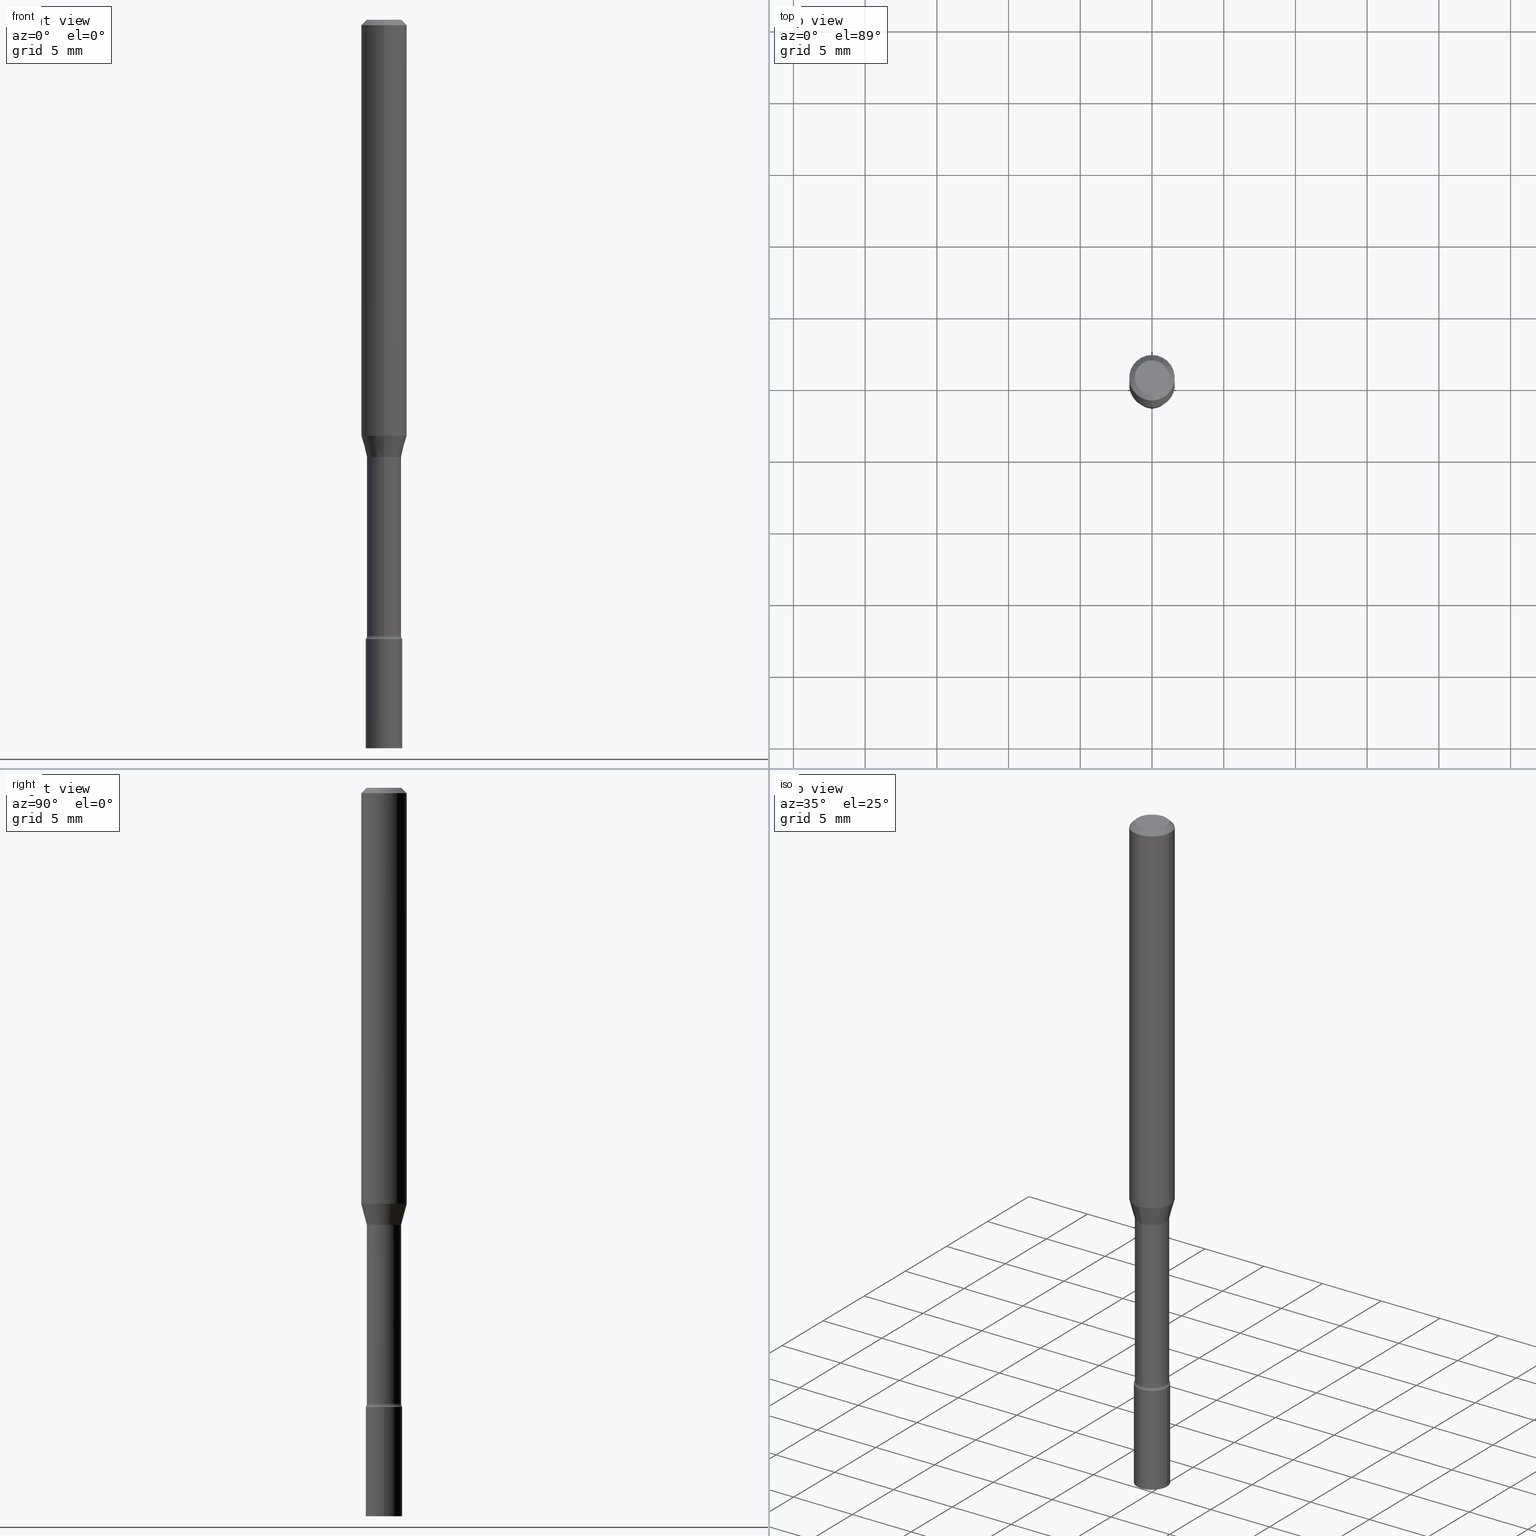
[diagram: canonical four-view strip — front | top / right | iso, engineering-drawing reading convention]
A machine part, canonical four-view strip (front | top / right | iso — engineering-drawing reading convention). The complete STEP part file that produces these views, byte-faithful:
ISO-10303-21;
HEADER;
FILE_DESCRIPTION (( 'STEP AP203' ),
    '1' );
FILE_NAME ('01334.STEP',
    '2024-03-08T21:14:41',
    ( '' ),
    ( '' ),
    'SwSTEP 2.0',
    'SolidWorks 2023',
    '' );
FILE_SCHEMA (( 'CONFIG_CONTROL_DESIGN' ));
ENDSEC;

DATA;
#1 = ORIENTED_EDGE ( 'NONE', *, *, #10, .T. ) ;
#2 = PERSON_AND_ORGANIZATION_ROLE ( 'design_supplier' ) ;
#3 = FACE_OUTER_BOUND ( 'NONE', #501, .T. ) ;
#4 =( NAMED_UNIT ( * ) SI_UNIT ( $, .STERADIAN. ) SOLID_ANGLE_UNIT ( ) );
#5 = LOCAL_TIME ( 16, 14, 41.00000000000000000, #60 ) ;
#6 = DIRECTION ( 'NONE',  ( -6.982962677686266711E-15, -1.000000000000000000, 3.491578024040388367E-15 ) ) ;
#7 = DIRECTION ( 'NONE',  ( -2.445401291272753794E-29, 3.491578024040387972E-15, 1.000000000000000000 ) ) ;
#8 = DIRECTION ( 'NONE',  ( 1.000000000000000000, -6.982962677686274599E-15, 0.000000000000000000 ) ) ;
#9 = AXIS2_PLACEMENT_3D ( 'NONE', #447, #80, #30 ) ;
#10 = EDGE_CURVE ( 'NONE', #214, #58, #506, .T. ) ;
#11 = ORGANIZATION ( 'UNSPECIFIED', 'UNSPECIFIED', '' ) ;
#12 = CARTESIAN_POINT ( 'NONE',  ( 3.668101936909137820E-31, -5.237367036060592707E-17, -0.01500000000000003067 ) ) ;
#13 = DIRECTION ( 'NONE',  ( -2.445401291272753794E-29, 3.491578024040387972E-15, 1.000000000000000000 ) ) ;
#14 = CARTESIAN_POINT ( 'NONE',  ( 3.668101936909137820E-31, -5.237367036060592707E-17, -0.01500000000000003067 ) ) ;
#15 = CARTESIAN_POINT ( 'NONE',  ( 4.890937612370273194E-29, -6.982962677686291165E-15, -2.000000000000000000 ) ) ;
#16 = CONICAL_SURFACE ( 'NONE', #414, 0.06250000000000000000, 0.7853981633974483900 ) ;
#17 = DIRECTION ( 'NONE',  ( -2.445401291272753794E-29, 3.491578024040387972E-15, 1.000000000000000000 ) ) ;
#18 = DIRECTION ( 'NONE',  ( -2.445468806185136597E-29, 3.491481338843145583E-15, 1.000000000000000000 ) ) ;
#19 = VERTEX_POINT ( 'NONE', #382 ) ;
#20 = PERSON_AND_ORGANIZATION_ROLE ( 'creator' ) ;
#21 = CALENDAR_DATE ( 2024, 8, 3 ) ;
#22 = TOROIDAL_SURFACE ( 'NONE', #281, 0.06199999999999999956, 0.01499999999999998557 ) ;
#23 = EDGE_CURVE ( 'NONE', #275, #148, #94, .T. ) ;
#24 = FACE_OUTER_BOUND ( 'NONE', #321, .T. ) ;
#25 = ORIENTED_EDGE ( 'NONE', *, *, #50, .F. ) ;
#26 = EDGE_LOOP ( 'NONE', ( #235, #28, #368, #508 ) ) ;
#27 = ORIENTED_EDGE ( 'NONE', *, *, #88, .F. ) ;
#28 = ORIENTED_EDGE ( 'NONE', *, *, #513, .F. ) ;
#29 = VECTOR ( 'NONE', #362, 39.37007874015748143 ) ;
#30 = DIRECTION ( 'NONE',  ( 1.000000000000000000, -6.982962677686274599E-15, 0.000000000000000000 ) ) ;
#31 = DIRECTION ( 'NONE',  ( -2.445401291272753794E-29, 3.491578024040387972E-15, 1.000000000000000000 ) ) ;
#32 = DIRECTION ( 'NONE',  ( -2.445401291272753794E-29, 3.491578024040387972E-15, 1.000000000000000000 ) ) ;
#33 = ORIENTED_EDGE ( 'NONE', *, *, #119, .F. ) ;
#34 = AXIS2_PLACEMENT_3D ( 'NONE', #409, #520, #291 ) ;
#35 = DIRECTION ( 'NONE',  ( -2.445401291272753794E-29, 3.491578024040387972E-15, 1.000000000000000000 ) ) ;
#36 = ADVANCED_FACE ( 'NONE', ( #24 ), #470, .T. ) ;
#37 = DIRECTION ( 'NONE',  ( -6.982962677686265922E-15, -1.000000000000000000, 3.491578024040387972E-15 ) ) ;
#38 = DIRECTION ( 'NONE',  ( -6.982962677686266711E-15, -1.000000000000000000, 0.000000000000000000 ) ) ;
#39 = ORIENTED_EDGE ( 'NONE', *, *, #372, .F. ) ;
#40 = DIRECTION ( 'NONE',  ( -2.445401291272753794E-29, 3.491578024040387972E-15, 1.000000000000000000 ) ) ;
#41 = DIRECTION ( 'NONE',  ( -6.982962677686265922E-15, -1.000000000000000000, 3.491578024040387972E-15 ) ) ;
#42 = EDGE_CURVE ( 'NONE', #267, #257, #469, .T. ) ;
#43 = DIRECTION ( 'NONE',  ( 1.839019923739597160E-15, 0.2588190451025245142, 0.9659258262890670910 ) ) ;
#44 = ORIENTED_EDGE ( 'NONE', *, *, #23, .F. ) ;
#45 = ADVANCED_FACE ( 'NONE', ( #433 ), #389, .T. ) ;
#46 = CARTESIAN_POINT ( 'NONE',  ( 4.157182195163681338E-29, -5.935682640868658685E-15, -1.699999999999999956 ) ) ;
#47 = AXIS2_PLACEMENT_3D ( 'NONE', #272, #192, #62 ) ;
#48 = DIRECTION ( 'NONE',  ( -2.445468806185136597E-29, 3.491481338843145583E-15, 1.000000000000000000 ) ) ;
#49 = DIRECTION ( 'NONE',  ( -6.982962677686265922E-15, -1.000000000000000000, 3.491578024040387972E-15 ) ) ;
#50 = EDGE_CURVE ( 'NONE', #193, #503, #166, .T. ) ;
#51 = CARTESIAN_POINT ( 'NONE',  ( 4.364351673553919652E-16, 0.06249999999999995143, -0.01500000000000024751 ) ) ;
#52 = ADVANCED_FACE ( 'NONE', ( #453 ), #326, .F. ) ;
#53 = FACE_OUTER_BOUND ( 'NONE', #157, .T. ) ;
#54 = CIRCLE ( 'NONE', #91, 0.05000000000000000278 ) ;
#55 = DIMENSIONAL_EXPONENTS ( 1.000000000000000000, 0.000000000000000000, 0.000000000000000000, 0.000000000000000000, 0.000000000000000000, 0.000000000000000000, 0.000000000000000000 ) ;
#56 = ORIENTED_EDGE ( 'NONE', *, *, #178, .T. ) ;
#57 = PERSON_AND_ORGANIZATION ( #286, #11 ) ;
#58 = VERTEX_POINT ( 'NONE', #328 ) ;
#59 = ORIENTED_EDGE ( 'NONE', *, *, #126, .T. ) ;
#60 = COORDINATED_UNIVERSAL_TIME_OFFSET ( 5, 0, .BEHIND. ) ;
#61 = APPROVAL ( #422, 'UNSPECIFIED' ) ;
#62 = DIRECTION ( 'NONE',  ( -6.982962677686265133E-15, -1.000000000000000000, 2.874956872025123732E-15 ) ) ;
#63 = LOCAL_TIME ( 16, 14, 41.00000000000000000, #194 ) ;
#64 = ORIENTED_EDGE ( 'NONE', *, *, #338, .T. ) ;
#65 = AXIS2_PLACEMENT_3D ( 'NONE', #489, #89, #249 ) ;
#66 = ADVANCED_BREP_SHAPE_REPRESENTATION ( '01334', ( #340, #505, #95 ), #320 ) ;
#67 = EDGE_LOOP ( 'NONE', ( #152, #265 ) ) ;
#68 = EDGE_CURVE ( 'NONE', #214, #227, #209, .T. ) ;
#69 = CARTESIAN_POINT ( 'NONE',  ( 7.069488449871256355E-46, -1.009391407490864574E-31, -2.890931838099999825E-17 ) ) ;
#70 = EDGE_LOOP ( 'NONE', ( #412, #199, #104, #387 ) ) ;
#71 = CIRCLE ( 'NONE', #313, 0.06250000000000000000 ) ;
#72 = DIRECTION ( 'NONE',  ( -2.445401291272753794E-29, 3.491578024040387972E-15, 1.000000000000000000 ) ) ;
#73 = DIRECTION ( 'NONE',  ( 2.438088387897960049E-29, -3.491481338843145188E-15, -1.000000000000000000 ) ) ;
#74 = DIRECTION ( 'NONE',  ( 0.000000000000000000, 0.000000000000000000, 1.000000000000000000 ) ) ;
#75 = CARTESIAN_POINT ( 'NONE',  ( 0.000000000000000000, 0.000000000000000000, 0.000000000000000000 ) ) ;
#76 = ADVANCED_FACE ( 'NONE', ( #411 ), #124, .T. ) ;
#77 = CLOSED_SHELL ( 'NONE', ( #164, #360, #36, #318 ) ) ;
#78 = FACE_OUTER_BOUND ( 'NONE', #504, .T. ) ;
#79 = CARTESIAN_POINT ( 'NONE',  ( 3.316907271900976096E-16, 0.04749999999999999362, -1.803046153324184159E-16 ) ) ;
#80 = DIRECTION ( 'NONE',  ( -2.445468806185136597E-29, 3.491481338843145583E-15, 1.000000000000000000 ) ) ;
#81 = CIRCLE ( 'NONE', #509, 0.04700000000000009032 ) ;
#82 =( LENGTH_UNIT ( ) NAMED_UNIT ( * ) SI_UNIT ( $, .METRE. ) );
#83 = CARTESIAN_POINT ( 'NONE',  ( 0.000000000000000000, 0.000000000000000000, 0.000000000000000000 ) ) ;
#84 = DIRECTION ( 'NONE',  ( -2.445401291272753794E-29, 3.491578024040387972E-15, 1.000000000000000000 ) ) ;
#85 = CARTESIAN_POINT ( 'NONE',  ( 7.069488449871256355E-46, -1.009391407490864574E-31, -2.890931838099999825E-17 ) ) ;
#86 = DIRECTION ( 'NONE',  ( 6.982962677686265922E-15, 1.000000000000000000, -3.483106191921935554E-15 ) ) ;
#87 = DIRECTION ( 'NONE',  ( -6.982962677686265922E-15, -1.000000000000000000, 2.906221269855598900E-15 ) ) ;
#88 = EDGE_CURVE ( 'NONE', #468, #148, #217, .T. ) ;
#89 = DIRECTION ( 'NONE',  ( -2.445401291272753794E-29, 3.491578024040387972E-15, 1.000000000000000000 ) ) ;
#90 = CARTESIAN_POINT ( 'NONE',  ( -4.364351673553912750E-16, -0.06250000000000005551, -0.01499999999999981209 ) ) ;
#91 = AXIS2_PLACEMENT_3D ( 'NONE', #46, #379, #123 ) ;
#92 = DIRECTION ( 'NONE',  ( -6.982962677686265922E-15, -1.000000000000000000, 2.906221269855598900E-15 ) ) ;
#93 = CARTESIAN_POINT ( 'NONE',  ( -3.281992458512548490E-16, -0.04700000000000004868, 1.641041671298983710E-16 ) ) ;
#94 = CIRCLE ( 'NONE', #516, 0.05000000000000000278 ) ;
#95 = AXIS2_PLACEMENT_3D ( 'NONE', #442, #74, #391 ) ;
#96 = AXIS2_PLACEMENT_3D ( 'NONE', #335, #491, #420 ) ;
#97 = AXIS2_PLACEMENT_3D ( 'NONE', #435, #101, #428 ) ;
#98 = ORIENTED_EDGE ( 'NONE', *, *, #305, .T. ) ;
#99 = DIRECTION ( 'NONE',  ( -2.445401291272753794E-29, 3.491578024040387972E-15, 1.000000000000000000 ) ) ;
#100 = ORIENTED_EDGE ( 'NONE', *, *, #173, .T. ) ;
#101 = DIRECTION ( 'NONE',  ( -2.445468806185136597E-29, 3.491481338843145583E-15, 1.000000000000000000 ) ) ;
#102 = ORIENTED_EDGE ( 'NONE', *, *, #133, .F. ) ;
#103 = PERSON_AND_ORGANIZATION ( #286, #11 ) ;
#104 = ORIENTED_EDGE ( 'NONE', *, *, #116, .T. ) ;
#105 = ORIENTED_EDGE ( 'NONE', *, *, #126, .F. ) ;
#106 = CONICAL_SURFACE ( 'NONE', #292, 0.04751111260566398542, 0.2617993877991498519 ) ;
#107 = VERTEX_POINT ( 'NONE', #371 ) ;
#108 = EDGE_LOOP ( 'NONE', ( #466, #1 ) ) ;
#109 = APPLICATION_PROTOCOL_DEFINITION ( 'international standard', 'config_control_design', 1994, #478 ) ;
#110 = ORIENTED_EDGE ( 'NONE', *, *, #42, .T. ) ;
#111 =( CONVERSION_BASED_UNIT ( 'INCH', #323 ) LENGTH_UNIT ( ) NAMED_UNIT ( #55 ) );
#112 = CIRCLE ( 'NONE', #380, 0.05000000000000000278 ) ;
#113 = AXIS2_PLACEMENT_3D ( 'NONE', #471, #319, #472 ) ;
#114 = DIRECTION ( 'NONE',  ( -2.445401291272753514E-29, 3.491578024040387972E-15, 1.000000000000000000 ) ) ;
#115 = DIRECTION ( 'NONE',  ( 1.000000000000000000, -7.105427357601001070E-15, 4.926316692594255359E-29 ) ) ;
#116 = EDGE_CURVE ( 'NONE', #19, #227, #289, .T. ) ;
#117 = DIRECTION ( 'NONE',  ( -2.445401291272753794E-29, 3.491578024040387972E-15, 1.000000000000000000 ) ) ;
#118 = LINE ( 'NONE', #210, #460 ) ;
#119 = EDGE_CURVE ( 'NONE', #139, #275, #421, .T. ) ;
#120 = CARTESIAN_POINT ( 'NONE',  ( 2.793022940636475492E-29, -3.987917056791665682E-15, -1.142153212482682312 ) ) ;
#121 = EDGE_CURVE ( 'NONE', #267, #245, #515, .T. ) ;
#122 = AXIS2_PLACEMENT_3D ( 'NONE', #254, #13, #253 ) ;
#123 = DIRECTION ( 'NONE',  ( -6.982962677686265133E-15, -1.000000000000000000, 5.463695987328526437E-15 ) ) ;
#124 = CYLINDRICAL_SURFACE ( 'NONE', #197, 0.04700000000000004868 ) ;
#125 = FACE_OUTER_BOUND ( 'NONE', #67, .T. ) ;
#126 = EDGE_CURVE ( 'NONE', #136, #107, #246, .T. ) ;
#127 = FACE_OUTER_BOUND ( 'NONE', #241, .T. ) ;
#128 = ORIENTED_EDGE ( 'NONE', *, *, #119, .T. ) ;
#129 = CIRCLE ( 'NONE', #96, 0.06250000000000000000 ) ;
#130 = CARTESIAN_POINT ( 'NONE',  ( 3.908379845742332554E-16, 0.04751111260565980127, -1.198092501787273223 ) ) ;
#131 = LINE ( 'NONE', #93, #147 ) ;
#132 = ADVANCED_FACE ( 'NONE', ( #479 ), #22, .F. ) ;
#133 = EDGE_CURVE ( 'NONE', #468, #193, #151, .T. ) ;
#134 = CARTESIAN_POINT ( 'NONE',  ( 2.939310697341296923E-29, -4.196788753359257996E-15, -1.201974787463810701 ) ) ;
#135 = AXIS2_PLACEMENT_3D ( 'NONE', #361, #285, #87 ) ;
#136 = VERTEX_POINT ( 'NONE', #396 ) ;
#137 = PERSON_AND_ORGANIZATION ( #286, #11 ) ;
#138 = DIRECTION ( 'NONE',  ( -6.982962677686265133E-15, -1.000000000000000000, 5.463695987328526437E-15 ) ) ;
#139 = VERTEX_POINT ( 'NONE', #287 ) ;
#140 = APPROVAL_STATUS ( 'not_yet_approved' ) ;
#141 = EDGE_CURVE ( 'NONE', #304, #519, #262, .T. ) ;
#142 = ORIENTED_EDGE ( 'NONE', *, *, #269, .F. ) ;
#143 = ORIENTED_EDGE ( 'NONE', *, *, #220, .T. ) ;
#144 = SHAPE_DEFINITION_REPRESENTATION ( #258, #66 ) ;
#145 = DIRECTION ( 'NONE',  ( -2.445401291272753794E-29, 3.491578024040387972E-15, 1.000000000000000000 ) ) ;
#146 = ORIENTED_EDGE ( 'NONE', *, *, #316, .F. ) ;
#147 = VECTOR ( 'NONE', #343, 39.37007874015748143 ) ;
#148 = VERTEX_POINT ( 'NONE', #355 ) ;
#149 = ORIENTED_EDGE ( 'NONE', *, *, #10, .F. ) ;
#150 = PERSON_AND_ORGANIZATION ( #286, #11 ) ;
#151 = LINE ( 'NONE', #236, #205 ) ;
#152 = ORIENTED_EDGE ( 'NONE', *, *, #141, .T. ) ;
#153 = PRODUCT_DEFINITION ( 'UNKNOWN', '', #175, #418 ) ;
#154 = FACE_OUTER_BOUND ( 'NONE', #70, .T. ) ;
#155 = DIRECTION ( 'NONE',  ( -2.445401291272753794E-29, 3.491578024040387972E-15, 1.000000000000000000 ) ) ;
#157 = EDGE_LOOP ( 'NONE', ( #182, #278, #39, #393 ) ) ;
#156 = AXIS2_PLACEMENT_3D ( 'NONE', #208, #114, #37 ) ;
#158 = AXIS2_PLACEMENT_3D ( 'NONE', #485, #7, #458 ) ;
#159 = DIRECTION ( 'NONE',  ( -2.445401291272753794E-29, 3.491578024040387972E-15, 1.000000000000000000 ) ) ;
#160 = DIRECTION ( 'NONE',  ( -6.982962677686265922E-15, -1.000000000000000000, 3.491578024040387183E-15 ) ) ;
#161 = DIRECTION ( 'NONE',  ( -6.982962677686265922E-15, -1.000000000000000000, 3.491578024040387972E-15 ) ) ;
#162 = CARTESIAN_POINT ( 'NONE',  ( 4.135287751259066496E-29, -5.904094943983759361E-15, -1.691000000000000059 ) ) ;
#163 = DIRECTION ( 'NONE',  ( -2.445401291272753794E-29, 3.491578024040387972E-15, 1.000000000000000000 ) ) ;
#164 = ADVANCED_FACE ( 'NONE', ( #198 ), #358, .T. ) ;
#165 = CIRCLE ( 'NONE', #231, 0.06250000000000000000 ) ;
#166 = CIRCLE ( 'NONE', #135, 0.04700000000000000705 ) ;
#167 = CYLINDRICAL_SURFACE ( 'NONE', #158, 0.04700000000000004868 ) ;
#168 = ORIENTED_EDGE ( 'NONE', *, *, #250, .F. ) ;
#169 = CARTESIAN_POINT ( 'NONE',  ( 4.405364961712914478E-16, 0.06199999999999579459, -1.201974787463811145 ) ) ;
#170 = DIRECTION ( 'NONE',  ( 2.445401291272753794E-29, -3.491578024040387972E-15, -1.000000000000000000 ) ) ;
#171 = CARTESIAN_POINT ( 'NONE',  ( 4.157296970514731878E-29, -5.935518276033347214E-15, -1.699999999999999956 ) ) ;
#172 = EDGE_CURVE ( 'NONE', #107, #136, #112, .T. ) ;
#173 = EDGE_CURVE ( 'NONE', #227, #484, #71, .T. ) ;
#174 = DIRECTION ( 'NONE',  ( 6.982962677686265922E-15, 1.000000000000000000, -3.483106191921935554E-15 ) ) ;
#175 = PRODUCT_DEFINITION_FORMATION_WITH_SPECIFIED_SOURCE ( 'ANY', '', #339, .NOT_KNOWN. ) ;
#176 = VECTOR ( 'NONE', #518, 39.37007874015748143 ) ;
#177 = DIRECTION ( 'NONE',  ( 1.000000000000000000, -6.982962677686274599E-15, 0.000000000000000000 ) ) ;
#178 = EDGE_CURVE ( 'NONE', #139, #503, #131, .T. ) ;
#179 = APPLICATION_CONTEXT ( 'configuration controlled 3d designs of mechanical parts and assemblies' ) ;
#180 = COORDINATED_UNIVERSAL_TIME_OFFSET ( 5, 0, .BEHIND. ) ;
#181 = ADVANCED_FACE ( 'NONE', ( #127 ), #16, .T. ) ;
#182 = ORIENTED_EDGE ( 'NONE', *, *, #316, .T. ) ;
#183 = CALENDAR_DATE ( 2024, 8, 3 ) ;
#184 = AXIS2_PLACEMENT_3D ( 'NONE', #327, #84, #247 ) ;
#185 = CARTESIAN_POINT ( 'NONE',  ( 4.157182195163681338E-29, -5.935682640868658685E-15, -1.699999999999999956 ) ) ;
#186 = ORIENTED_EDGE ( 'NONE', *, *, #233, .T. ) ;
#187 = DATE_AND_TIME ( #21, #480 ) ;
#188 = EDGE_CURVE ( 'NONE', #484, #227, #129, .T. ) ;
#189 = EDGE_LOOP ( 'NONE', ( #142, #146, #64, #143 ) ) ;
#190 = ORIENTED_EDGE ( 'NONE', *, *, #322, .T. ) ;
#191 = ADVANCED_FACE ( 'NONE', ( #53 ), #106, .T. ) ;
#192 = DIRECTION ( 'NONE',  ( -2.445401291272753794E-29, 3.491578024040387972E-15, 1.000000000000000000 ) ) ;
#193 = VERTEX_POINT ( 'NONE', #496 ) ;
#194 = COORDINATED_UNIVERSAL_TIME_OFFSET ( 5, 0, .BEHIND. ) ;
#195 = PLANE ( 'NONE',  #366 ) ;
#196 = PERSON_AND_ORGANIZATION ( #286, #11 ) ;
#197 = AXIS2_PLACEMENT_3D ( 'NONE', #83, #72, #160 ) ;
#198 = FACE_OUTER_BOUND ( 'NONE', #434, .T. ) ;
#199 = ORIENTED_EDGE ( 'NONE', *, *, #510, .T. ) ;
#200 = CARTESIAN_POINT ( 'NONE',  ( 3.446132268436902621E-16, 0.04699999999999417838, -1.691000000000000281 ) ) ;
#201 = DIRECTION ( 'NONE',  ( 6.982962677686265922E-15, 1.000000000000000000, -3.491578024040387972E-15 ) ) ;
#202 = PERSON_AND_ORGANIZATION_ROLE ( 'classification_officer' ) ;
#203 = CARTESIAN_POINT ( 'NONE',  ( -0.05000000000000000278, 3.552713678800501127E-16, -2.459467545127453311E-30 ) ) ;
#204 = DIRECTION ( 'NONE',  ( 2.445401291272753514E-29, -3.491578024040387972E-15, -1.000000000000000000 ) ) ;
#205 = VECTOR ( 'NONE', #117, 39.37007874015748143 ) ;
#206 = DIRECTION ( 'NONE',  ( 7.105427357601006592E-15, 1.000000000000000000, 0.000000000000000000 ) ) ;
#207 = DIRECTION ( 'NONE',  ( -6.982962677686265922E-15, -1.000000000000000000, 4.370956789862821150E-15 ) ) ;
#208 = CARTESIAN_POINT ( 'NONE',  ( 3.491481338843548493E-16, 0.04999999999999407002, -1.700000000000000178 ) ) ;
#209 = LINE ( 'NONE', #482, #176 ) ;
#210 = CARTESIAN_POINT ( 'NONE',  ( 4.440892098500625669E-16, 0.06250000000000000000, -2.182236265025242483E-16 ) ) ;
#211 = CYLINDRICAL_SURFACE ( 'NONE', #500, 0.06250000000000000000 ) ;
#212 = DIRECTION ( 'NONE',  ( 4.937700262164548042E-15, 0.7071067811865451302, -0.7071067811865499042 ) ) ;
#213 = CARTESIAN_POINT ( 'NONE',  ( 4.890937612370273194E-29, -6.982962677686291165E-15, -2.000000000000000000 ) ) ;
#214 = VERTEX_POINT ( 'NONE', #464 ) ;
#215 = APPROVAL_PERSON_ORGANIZATION ( #137, #239, #230 ) ;
#216 = ORIENTED_EDGE ( 'NONE', *, *, #226, .T. ) ;
#217 = CIRCLE ( 'NONE', #474, 0.01499999999999997689 ) ;
#218 = TOROIDAL_SURFACE ( 'NONE', #440, 0.06199999999999999956, 0.01499999999999998557 ) ;
#219 = CARTESIAN_POINT ( 'NONE',  ( 4.440892098500904235E-16, 0.06249999999999600320, -1.142153212482682756 ) ) ;
#220 = EDGE_CURVE ( 'NONE', #503, #193, #397, .T. ) ;
#221 = EDGE_LOOP ( 'NONE', ( #497, #374, #333, #511 ) ) ;
#222 = DIRECTION ( 'NONE',  ( -2.445468806185136597E-29, 3.491481338843145583E-15, 1.000000000000000000 ) ) ;
#223 = AXIS2_PLACEMENT_3D ( 'NONE', #79, #204, #201 ) ;
#224 = CC_DESIGN_DATE_AND_TIME_ASSIGNMENT ( #459, #341, ( #260 ) ) ;
#225 = CARTESIAN_POINT ( 'NONE',  ( 2.929816950934801844E-29, -4.183233450008011777E-15, -1.198092501787273001 ) ) ;
#226 = EDGE_CURVE ( 'NONE', #468, #139, #81, .T. ) ;
#227 = VERTEX_POINT ( 'NONE', #90 ) ;
#228 = DIRECTION ( 'NONE',  ( -6.982962677686266711E-15, -1.000000000000000000, 3.491578024040388367E-15 ) ) ;
#229 = ORIENTED_EDGE ( 'NONE', *, *, #510, .F. ) ;
#230 = APPROVAL_ROLE ( '' ) ;
#231 = AXIS2_PLACEMENT_3D ( 'NONE', #120, #40, #207 ) ;
#232 = VECTOR ( 'NONE', #454, 39.37007874015748143 ) ;
#233 = EDGE_CURVE ( 'NONE', #148, #275, #54, .T. ) ;
#234 = ORIENTED_EDGE ( 'NONE', *, *, #347, .F. ) ;
#235 = ORIENTED_EDGE ( 'NONE', *, *, #68, .F. ) ;
#236 = CARTESIAN_POINT ( 'NONE',  ( 3.339550858072473347E-16, 0.04700000000000004868, -1.641041671298983710E-16 ) ) ;
#237 = APPROVAL_PERSON_ORGANIZATION ( #196, #502, #266 ) ;
#238 = EDGE_LOOP ( 'NONE', ( #27, #168, #128, #392 ) ) ;
#239 = APPROVAL ( #430, 'UNSPECIFIED' ) ;
#240 = DIRECTION ( 'NONE',  ( -6.982962677686265922E-15, -1.000000000000000000, 4.370956789862821150E-15 ) ) ;
#241 = EDGE_LOOP ( 'NONE', ( #149, #443, #100, #465 ) ) ;
#242 = CARTESIAN_POINT ( 'NONE',  ( 3.491481338843621956E-16, 0.04999999999999302225, -2.000000000000000444 ) ) ;
#243 = CARTESIAN_POINT ( 'NONE',  ( -3.281992458512251188E-16, -0.04700000000000420508, -1.201974787463810701 ) ) ;
#244 = CARTESIAN_POINT ( 'NONE',  ( -4.329436860165075429E-16, -0.06200000000000597394, -1.690999999999999837 ) ) ;
#245 = VERTEX_POINT ( 'NONE', #219 ) ;
#246 = CIRCLE ( 'NONE', #252, 0.05000000000000000278 ) ;
#247 = DIRECTION ( 'NONE',  ( -6.982962677686265133E-15, -1.000000000000000000, 2.874956872025123732E-15 ) ) ;
#248 = CARTESIAN_POINT ( 'NONE',  ( 0.05000000000000000278, -6.284666409917660550E-15, -1.699999999999999956 ) ) ;
#249 = DIRECTION ( 'NONE',  ( -6.982962677686265133E-15, -1.000000000000000000, 2.874956872025123732E-15 ) ) ;
#250 = EDGE_CURVE ( 'NONE', #139, #468, #356, .T. ) ;
#251 = TOROIDAL_SURFACE ( 'NONE', #490, 0.06200000000000006894, 0.01499999999999998036 ) ;
#252 = AXIS2_PLACEMENT_3D ( 'NONE', #213, #369, #8 ) ;
#253 = DIRECTION ( 'NONE',  ( -6.982962677686265133E-15, -1.000000000000000000, 5.812442539711187545E-15 ) ) ;
#254 = CARTESIAN_POINT ( 'NONE',  ( 4.135173583542227475E-29, -5.904258438652295538E-15, -1.691000000000000059 ) ) ;
#255 = EDGE_CURVE ( 'NONE', #58, #484, #493, .T. ) ;
#256 = FACE_OUTER_BOUND ( 'NONE', #238, .T. ) ;
#257 = VERTEX_POINT ( 'NONE', #377 ) ;
#258 = PRODUCT_DEFINITION_SHAPE ( 'NONE', 'NONE',  #153 ) ;
#259 = CARTESIAN_POINT ( 'NONE',  ( 0.000000000000000000, 0.000000000000000000, 0.000000000000000000 ) ) ;
#260 = SECURITY_CLASSIFICATION ( '', '', #403 ) ;
#261 = PERSON_AND_ORGANIZATION ( #286, #11 ) ;
#262 = CIRCLE ( 'NONE', #9, 0.05000000000000000278 ) ;
#263 = ORIENTED_EDGE ( 'NONE', *, *, #220, .F. ) ;
#264 = DIRECTION ( 'NONE',  ( -6.982962677686265133E-15, -1.000000000000000000, 2.874956872025123732E-15 ) ) ;
#265 = ORIENTED_EDGE ( 'NONE', *, *, #279, .T. ) ;
#266 = APPROVAL_ROLE ( '' ) ;
#267 = VERTEX_POINT ( 'NONE', #130 ) ;
#268 = ADVANCED_FACE ( 'NONE', ( #336 ), #167, .T. ) ;
#269 = EDGE_CURVE ( 'NONE', #267, #193, #330, .T. ) ;
#270 = AXIS2_PLACEMENT_3D ( 'NONE', #85, #159, #6 ) ;
#271 = APPROVAL_DATE_TIME ( #359, #61 ) ;
#272 = CARTESIAN_POINT ( 'NONE',  ( 2.929816950934801844E-29, -4.183233450008011777E-15, -1.198092501787273001 ) ) ;
#273 = VECTOR ( 'NONE', #311, 39.37007874015748143 ) ;
#274 = EDGE_LOOP ( 'NONE', ( #312, #429, #350, #317 ) ) ;
#275 = VERTEX_POINT ( 'NONE', #332 ) ;
#276 = PERSON_AND_ORGANIZATION_ROLE ( 'design_owner' ) ;
#277 = ADVANCED_FACE ( 'NONE', ( #256 ), #457, .F. ) ;
#278 = ORIENTED_EDGE ( 'NONE', *, *, #121, .T. ) ;
#279 = EDGE_CURVE ( 'NONE', #519, #304, #302, .T. ) ;
#280 = CC_DESIGN_APPROVAL ( #502, ( #153 ) ) ;
#281 = AXIS2_PLACEMENT_3D ( 'NONE', #444, #35, #161 ) ;
#282 = CIRCLE ( 'NONE', #270, 0.04749999999999999362 ) ;
#283 = CARTESIAN_POINT ( 'NONE',  ( 2.793022940636475492E-29, -3.987917056791665682E-15, -1.142153212482682312 ) ) ;
#284 = ADVANCED_FACE ( 'NONE', ( #373 ), #375, .T. ) ;
#285 = DIRECTION ( 'NONE',  ( -2.445401291272753794E-29, 3.491578024040387972E-15, 1.000000000000000000 ) ) ;
#286 = PERSON ( 'UNSPECIFIED', 'UNSPECIFIED', 'UNSPECIFIED', ('UNSPECIFIED'), ('UNSPECIFIED'), ('UNSPECIFIED') ) ;
#287 = CARTESIAN_POINT ( 'NONE',  ( -3.281992458512137296E-16, -0.04700000000000599532, -1.690999999999999837 ) ) ;
#288 = CARTESIAN_POINT ( 'NONE',  ( -0.05000000000000000278, -6.103969108979769176E-15, -1.699999999999999956 ) ) ;
#289 = LINE ( 'NONE', #294, #499 ) ;
#290 = COORDINATED_UNIVERSAL_TIME_OFFSET ( 5, 0, .BEHIND. ) ;
#291 = DIRECTION ( 'NONE',  ( 1.000000000000000000, -6.982962677686265922E-15, 4.876176775795935793E-29 ) ) ;
#292 = AXIS2_PLACEMENT_3D ( 'NONE', #225, #99, #264 ) ;
#293 = DIRECTION ( 'NONE',  ( -6.982962677686265133E-15, -1.000000000000000000, 5.812442539711187545E-15 ) ) ;
#294 = CARTESIAN_POINT ( 'NONE',  ( -4.364351673553916201E-16, -0.06250000000000000000, 2.182236265025242483E-16 ) ) ;
#295 = ORIENTED_EDGE ( 'NONE', *, *, #279, .F. ) ;
#296 = FACE_OUTER_BOUND ( 'NONE', #344, .T. ) ;
#297 = AXIS2_PLACEMENT_3D ( 'NONE', #481, #452, #86 ) ;
#298 = DIRECTION ( 'NONE',  ( 1.000000000000000000, -7.105427357601001070E-15, 4.926316692594255359E-29 ) ) ;
#299 = CALENDAR_DATE ( 2024, 8, 3 ) ;
#300 = EDGE_LOOP ( 'NONE', ( #102, #216, #56, #25 ) ) ;
#301 = LOCAL_TIME ( 16, 14, 41.00000000000000000, #180 ) ;
#302 = CIRCLE ( 'NONE', #329, 0.05000000000000000278 ) ;
#303 = DIRECTION ( 'NONE',  ( -2.445401291272753794E-29, 3.491578024040387972E-15, 1.000000000000000000 ) ) ;
#304 = VERTEX_POINT ( 'NONE', #248 ) ;
#305 = EDGE_CURVE ( 'NONE', #136, #304, #334, .T. ) ;
#306 = ORIENTED_EDGE ( 'NONE', *, *, #172, .F. ) ;
#307 = ORIENTED_EDGE ( 'NONE', *, *, #226, .F. ) ;
#308 = APPROVAL_DATE_TIME ( #187, #239 ) ;
#309 = CLOSED_SHELL ( 'NONE', ( #132, #268, #456, #181, #45, #191, #423, #463, #284, #52, #494, #277, #76, #363 ) ) ;
#310 = EDGE_LOOP ( 'NONE', ( #398, #486, #263, #351 ) ) ;
#311 = DIRECTION ( 'NONE',  ( -1.807323732225327378E-15, -0.2588190451025177974, 0.9659258262890690894 ) ) ;
#312 = ORIENTED_EDGE ( 'NONE', *, *, #42, .F. ) ;
#313 = AXIS2_PLACEMENT_3D ( 'NONE', #14, #378, #495 ) ;
#314 = MECHANICAL_CONTEXT ( 'NONE', #478, 'mechanical' ) ;
#315 = DIRECTION ( 'NONE',  ( -1.000000000000000000, 6.982962677686265922E-15, -4.876176775795935793E-29 ) ) ;
#316 = EDGE_CURVE ( 'NONE', #257, #267, #517, .T. ) ;
#317 = ORIENTED_EDGE ( 'NONE', *, *, #338, .F. ) ;
#318 = ADVANCED_FACE ( 'NONE', ( #296 ), #195, .T. ) ;
#319 = DIRECTION ( 'NONE',  ( -1.000000000000000000, 6.982962677686265922E-15, -4.883557194083112340E-29 ) ) ;
#320 =( GEOMETRIC_REPRESENTATION_CONTEXT ( 3 ) GLOBAL_UNCERTAINTY_ASSIGNED_CONTEXT ( ( #354 ) ) GLOBAL_UNIT_ASSIGNED_CONTEXT ( ( #111, #405, #4 ) ) REPRESENTATION_CONTEXT ( 'NONE', 'WORKASPACE' ) );
#321 = EDGE_LOOP ( 'NONE', ( #234, #467, #98, #295 ) ) ;
#322 = EDGE_CURVE ( 'NONE', #257, #19, #400, .T. ) ;
#323 = LENGTH_MEASURE_WITH_UNIT ( LENGTH_MEASURE( 0.02539999999999999897 ), #82 );
#324 = CARTESIAN_POINT ( 'NONE',  ( 4.405364961713038724E-16, 0.06199999999999415701, -1.691000000000000281 ) ) ;
#325 = CC_DESIGN_DATE_AND_TIME_ASSIGNMENT ( #345, #498, ( #153 ) ) ;
#326 = PLANE ( 'NONE',  #223 ) ;
#327 = CARTESIAN_POINT ( 'NONE',  ( 2.929816950934801844E-29, -4.183233450008011777E-15, -1.198092501787273001 ) ) ;
#328 = CARTESIAN_POINT ( 'NONE',  ( 3.840629472727447874E-16, 0.04749999999999999362, -1.947592745229184119E-16 ) ) ;
#329 = AXIS2_PLACEMENT_3D ( 'NONE', #171, #222, #177 ) ;
#330 = CIRCLE ( 'NONE', #432, 0.01499999999999999424 ) ;
#331 = CC_DESIGN_PERSON_AND_ORGANIZATION_ASSIGNMENT ( #103, #388, ( #175 ) ) ;
#332 = CARTESIAN_POINT ( 'NONE',  ( -3.491481338842715752E-16, -0.05000000000000592165, -1.699999999999999734 ) ) ;
#333 = ORIENTED_EDGE ( 'NONE', *, *, #173, .F. ) ;
#334 = LINE ( 'NONE', #410, #232 ) ;
#335 = CARTESIAN_POINT ( 'NONE',  ( 3.668101936909137820E-31, -5.237367036060592707E-17, -0.01500000000000003067 ) ) ;
#336 = FACE_OUTER_BOUND ( 'NONE', #310, .T. ) ;
#337 = DIRECTION ( 'NONE',  ( 1.000000000000000000, -6.982962677686267499E-15, 4.876176775795936353E-29 ) ) ;
#338 = EDGE_CURVE ( 'NONE', #257, #503, #348, .T. ) ;
#339 = PRODUCT ( '01334', '01334', '', ( #314 ) ) ;
#340 = MANIFOLD_SOLID_BREP ( 'Body-Move/Copy2[1]', #77 ) ;
#341 = DATE_TIME_ROLE ( 'classification_date' ) ;
#342 = CALENDAR_DATE ( 2024, 8, 3 ) ;
#343 = DIRECTION ( 'NONE',  ( -2.445401291272753794E-29, 3.491578024040387972E-15, 1.000000000000000000 ) ) ;
#344 = EDGE_LOOP ( 'NONE', ( #105, #306 ) ) ;
#345 = DATE_AND_TIME ( #183, #5 ) ;
#346 = CIRCLE ( 'NONE', #365, 0.06250000000000000000 ) ;
#347 = EDGE_CURVE ( 'NONE', #107, #519, #402, .T. ) ;
#348 = CIRCLE ( 'NONE', #113, 0.01499999999999999424 ) ;
#349 = DIRECTION ( 'NONE',  ( -2.445401291272753794E-29, 3.491578024040387972E-15, 1.000000000000000000 ) ) ;
#350 = ORIENTED_EDGE ( 'NONE', *, *, #50, .T. ) ;
#351 = ORIENTED_EDGE ( 'NONE', *, *, #178, .F. ) ;
#352 = CC_DESIGN_PERSON_AND_ORGANIZATION_ASSIGNMENT ( #476, #202, ( #260 ) ) ;
#353 = ORIENTED_EDGE ( 'NONE', *, *, #233, .F. ) ;
#354 = UNCERTAINTY_MEASURE_WITH_UNIT (LENGTH_MEASURE( 1.000000000000000082E-05 ), #111, 'distance_accuracy_value', 'NONE');
#355 = CARTESIAN_POINT ( 'NONE',  ( 3.552713678800914786E-16, 0.04999999999999404227, -1.700000000000000178 ) ) ;
#356 = CIRCLE ( 'NONE', #122, 0.04700000000000009032 ) ;
#357 = CALENDAR_DATE ( 2024, 8, 3 ) ;
#358 = CYLINDRICAL_SURFACE ( 'NONE', #483, 0.05000000000000000278 ) ;
#359 = DATE_AND_TIME ( #342, #301 ) ;
#360 = ADVANCED_FACE ( 'NONE', ( #125 ), #370, .T. ) ;
#361 = CARTESIAN_POINT ( 'NONE',  ( 2.939310697341296923E-29, -4.196788753359257996E-15, -1.201974787463810701 ) ) ;
#362 = DIRECTION ( 'NONE',  ( -2.445468806185136877E-29, 3.491481338843145188E-15, 1.000000000000000000 ) ) ;
#363 = ADVANCED_FACE ( 'NONE', ( #367 ), #218, .F. ) ;
#364 = EDGE_CURVE ( 'NONE', #245, #484, #118, .T. ) ;
#365 = AXIS2_PLACEMENT_3D ( 'NONE', #283, #32, #240 ) ;
#366 = AXIS2_PLACEMENT_3D ( 'NONE', #242, #73, #315 ) ;
#367 = FACE_OUTER_BOUND ( 'NONE', #189, .T. ) ;
#368 = ORIENTED_EDGE ( 'NONE', *, *, #255, .T. ) ;
#369 = DIRECTION ( 'NONE',  ( -2.445468806185136597E-29, 3.491481338843145583E-15, 1.000000000000000000 ) ) ;
#370 = PLANE ( 'NONE',  #34 ) ;
#371 = CARTESIAN_POINT ( 'NONE',  ( -0.05000000000000000278, -6.103969108979769176E-15, -2.000000000000000000 ) ) ;
#372 = EDGE_CURVE ( 'NONE', #19, #245, #165, .T. ) ;
#373 = FACE_OUTER_BOUND ( 'NONE', #26, .T. ) ;
#374 = ORIENTED_EDGE ( 'NONE', *, *, #364, .T. ) ;
#375 = CONICAL_SURFACE ( 'NONE', #297, 0.06250000000000000000, 0.7853981633974483900 ) ;
#376 = CONICAL_SURFACE ( 'NONE', #184, 0.04751111260566398542, 0.2617993877991498519 ) ;
#377 = CARTESIAN_POINT ( 'NONE',  ( -3.317683261006717573E-16, -0.04751111260566816263, -1.198092501787272779 ) ) ;
#378 = DIRECTION ( 'NONE',  ( -2.445401291272753794E-29, 3.491578024040387972E-15, 1.000000000000000000 ) ) ;
#379 = DIRECTION ( 'NONE',  ( -2.445401291272753794E-29, 3.491578024040387972E-15, 1.000000000000000000 ) ) ;
#380 = AXIS2_PLACEMENT_3D ( 'NONE', #15, #18, #417 ) ;
#381 = APPROVAL_ROLE ( '' ) ;
#382 = CARTESIAN_POINT ( 'NONE',  ( -4.364351673553637635E-16, -0.06250000000000399680, -1.142153212482682090 ) ) ;
#383 = ORIENTED_EDGE ( 'NONE', *, *, #305, .F. ) ;
#384 = COORDINATED_UNIVERSAL_TIME_OFFSET ( 5, 0, .BEHIND. ) ;
#385 = CC_DESIGN_APPROVAL ( #61, ( #260 ) ) ;
#386 = VECTOR ( 'NONE', #212, 39.37007874015748143 ) ;
#387 = ORIENTED_EDGE ( 'NONE', *, *, #188, .F. ) ;
#388 = PERSON_AND_ORGANIZATION_ROLE ( 'creator' ) ;
#389 = CYLINDRICAL_SURFACE ( 'NONE', #406, 0.06250000000000000000 ) ;
#390 = ORIENTED_EDGE ( 'NONE', *, *, #141, .F. ) ;
#391 = DIRECTION ( 'NONE',  ( 1.000000000000000000, 0.000000000000000000, 0.000000000000000000 ) ) ;
#392 = ORIENTED_EDGE ( 'NONE', *, *, #23, .T. ) ;
#393 = ORIENTED_EDGE ( 'NONE', *, *, #322, .F. ) ;
#394 = APPLICATION_PROTOCOL_DEFINITION ( 'international standard', 'config_control_design', 1994, #179 ) ;
#395 = APPROVAL_PERSON_ORGANIZATION ( #261, #61, #381 ) ;
#396 = CARTESIAN_POINT ( 'NONE',  ( 0.05000000000000000278, -7.332110811570605290E-15, -2.000000000000000000 ) ) ;
#397 = CIRCLE ( 'NONE', #450, 0.04700000000000000705 ) ;
#398 = ORIENTED_EDGE ( 'NONE', *, *, #250, .T. ) ;
#399 = PERSON_AND_ORGANIZATION ( #286, #11 ) ;
#400 = LINE ( 'NONE', #404, #273 ) ;
#401 = FACE_OUTER_BOUND ( 'NONE', #426, .T. ) ;
#402 = LINE ( 'NONE', #203, #29 ) ;
#403 = SECURITY_CLASSIFICATION_LEVEL ( 'unclassified' ) ;
#404 = CARTESIAN_POINT ( 'NONE',  ( -3.317683261006717573E-16, -0.04751111260566816263, -1.198092501787272779 ) ) ;
#405 =( NAMED_UNIT ( * ) PLANE_ANGLE_UNIT ( ) SI_UNIT ( $, .RADIAN. ) );
#406 = AXIS2_PLACEMENT_3D ( 'NONE', #507, #163, #445 ) ;
#407 = DIRECTION ( 'NONE',  ( -2.445401291272753794E-29, 3.491578024040387972E-15, 1.000000000000000000 ) ) ;
#408 = CC_DESIGN_PERSON_AND_ORGANIZATION_ASSIGNMENT ( #399, #2, ( #175 ) ) ;
#409 = CARTESIAN_POINT ( 'NONE',  ( 4.157296970514731878E-29, -5.935518276033347214E-15, -1.699999999999999956 ) ) ;
#410 = CARTESIAN_POINT ( 'NONE',  ( 0.05000000000000000278, -3.491481338843133848E-16, 2.438088387897968247E-30 ) ) ;
#411 = FACE_OUTER_BOUND ( 'NONE', #300, .T. ) ;
#412 = ORIENTED_EDGE ( 'NONE', *, *, #364, .F. ) ;
#413 = DIRECTION ( 'NONE',  ( -2.445401291272753794E-29, 3.491578024040387972E-15, 1.000000000000000000 ) ) ;
#414 = AXIS2_PLACEMENT_3D ( 'NONE', #12, #170, #174 ) ;
#415 = DIRECTION ( 'NONE',  ( 7.105427357600993970E-15, 1.000000000000000000, 0.000000000000000000 ) ) ;
#416 = CC_DESIGN_PERSON_AND_ORGANIZATION_ASSIGNMENT ( #150, #20, ( #153 ) ) ;
#417 = DIRECTION ( 'NONE',  ( 1.000000000000000000, -6.982962677686274599E-15, 0.000000000000000000 ) ) ;
#418 = DESIGN_CONTEXT ( 'detailed design', #179, 'design' ) ;
#419 = CARTESIAN_POINT ( 'NONE',  ( 4.135173583542227475E-29, -5.904258438652295538E-15, -1.691000000000000059 ) ) ;
#420 = DIRECTION ( 'NONE',  ( -6.982962677686265922E-15, -1.000000000000000000, 3.483106191921935554E-15 ) ) ;
#421 = CIRCLE ( 'NONE', #492, 0.01499999999999997689 ) ;
#422 = APPROVAL_STATUS ( 'not_yet_approved' ) ;
#423 = ADVANCED_FACE ( 'NONE', ( #3 ), #376, .T. ) ;
#424 = ORIENTED_EDGE ( 'NONE', *, *, #347, .T. ) ;
#425 = ORIENTED_EDGE ( 'NONE', *, *, #88, .T. ) ;
#426 = EDGE_LOOP ( 'NONE', ( #307, #425, #186, #33 ) ) ;
#427 = AXIS2_PLACEMENT_3D ( 'NONE', #69, #145, #228 ) ;
#428 = DIRECTION ( 'NONE',  ( 1.000000000000000000, -6.982962677686267499E-15, 4.876176775795936353E-29 ) ) ;
#429 = ORIENTED_EDGE ( 'NONE', *, *, #269, .T. ) ;
#430 = APPROVAL_STATUS ( 'not_yet_approved' ) ;
#431 = LOCAL_TIME ( 16, 14, 41.00000000000000000, #290 ) ;
#432 = AXIS2_PLACEMENT_3D ( 'NONE', #169, #298, #415 ) ;
#433 = FACE_OUTER_BOUND ( 'NONE', #221, .T. ) ;
#434 = EDGE_LOOP ( 'NONE', ( #59, #424, #390, #383 ) ) ;
#435 = CARTESIAN_POINT ( 'NONE',  ( 0.000000000000000000, 0.000000000000000000, 0.000000000000000000 ) ) ;
#436 = ORIENTED_EDGE ( 'NONE', *, *, #121, .F. ) ;
#437 = CC_DESIGN_SECURITY_CLASSIFICATION ( #260, ( #175 ) ) ;
#438 = VECTOR ( 'NONE', #43, 39.37007874015748854 ) ;
#439 = DIRECTION ( 'NONE',  ( -2.445401291272753794E-29, 3.491578024040387972E-15, 1.000000000000000000 ) ) ;
#440 = AXIS2_PLACEMENT_3D ( 'NONE', #477, #407, #41 ) ;
#441 = CC_DESIGN_PERSON_AND_ORGANIZATION_ASSIGNMENT ( #57, #276, ( #339 ) ) ;
#442 = CARTESIAN_POINT ( 'NONE',  ( 0.000000000000000000, 0.000000000000000000, 0.000000000000000000 ) ) ;
#443 = ORIENTED_EDGE ( 'NONE', *, *, #68, .T. ) ;
#444 = CARTESIAN_POINT ( 'NONE',  ( 2.939391848563758953E-29, -4.196672540189851950E-15, -1.201974787463810701 ) ) ;
#445 = DIRECTION ( 'NONE',  ( -6.982962677686265922E-15, -1.000000000000000000, 3.491578024040387972E-15 ) ) ;
#446 = DIRECTION ( 'NONE',  ( -2.445401291272753794E-29, 3.491578024040387972E-15, 1.000000000000000000 ) ) ;
#447 = CARTESIAN_POINT ( 'NONE',  ( 4.157296970514731878E-29, -5.935518276033347214E-15, -1.699999999999999956 ) ) ;
#448 = PLANE ( 'NONE',  #156 ) ;
#449 = CARTESIAN_POINT ( 'NONE',  ( 3.375867592983759393E-16, 0.04751111260565980127, -1.198092501787273223 ) ) ;
#450 = AXIS2_PLACEMENT_3D ( 'NONE', #134, #303, #92 ) ;
#451 = DIRECTION ( 'NONE',  ( -6.982962677686265922E-15, -1.000000000000000000, 3.491578024040387972E-15 ) ) ;
#452 = DIRECTION ( 'NONE',  ( 2.445401291272753794E-29, -3.491578024040387972E-15, -1.000000000000000000 ) ) ;
#453 = FACE_OUTER_BOUND ( 'NONE', #108, .T. ) ;
#454 = DIRECTION ( 'NONE',  ( -2.445468806185136877E-29, 3.491481338843145188E-15, 1.000000000000000000 ) ) ;
#455 = CC_DESIGN_APPROVAL ( #239, ( #175 ) ) ;
#456 = ADVANCED_FACE ( 'NONE', ( #401 ), #251, .F. ) ;
#457 = TOROIDAL_SURFACE ( 'NONE', #462, 0.06200000000000006894, 0.01499999999999998036 ) ;
#458 = DIRECTION ( 'NONE',  ( -6.982962677686265922E-15, -1.000000000000000000, 3.491578024040387183E-15 ) ) ;
#459 = DATE_AND_TIME ( #299, #431 ) ;
#460 = VECTOR ( 'NONE', #446, 39.37007874015748143 ) ;
#461 = DATE_AND_TIME ( #357, #63 ) ;
#462 = AXIS2_PLACEMENT_3D ( 'NONE', #487, #17, #49 ) ;
#463 = ADVANCED_FACE ( 'NONE', ( #154 ), #211, .T. ) ;
#464 = CARTESIAN_POINT ( 'NONE',  ( -3.773273898774340269E-16, -0.04749999999999999362, 1.369406377609184031E-16 ) ) ;
#465 = ORIENTED_EDGE ( 'NONE', *, *, #255, .F. ) ;
#466 = ORIENTED_EDGE ( 'NONE', *, *, #513, .T. ) ;
#467 = ORIENTED_EDGE ( 'NONE', *, *, #172, .T. ) ;
#468 = VERTEX_POINT ( 'NONE', #200 ) ;
#469 = CIRCLE ( 'NONE', #47, 0.04751111260566398542 ) ;
#470 = CYLINDRICAL_SURFACE ( 'NONE', #97, 0.05000000000000000278 ) ;
#471 = CARTESIAN_POINT ( 'NONE',  ( -4.329436860165190307E-16, -0.06200000000000419759, -1.201974787463810479 ) ) ;
#472 = DIRECTION ( 'NONE',  ( -6.982962677686262766E-15, -1.000000000000000000, 0.000000000000000000 ) ) ;
#473 = DIRECTION ( 'NONE',  ( -1.000000000000000000, 6.982962677686265922E-15, -4.883557194083112340E-29 ) ) ;
#474 = AXIS2_PLACEMENT_3D ( 'NONE', #324, #115, #206 ) ;
#475 = CARTESIAN_POINT ( 'NONE',  ( 4.440892098500906207E-16, 0.06249999999999993755, -0.01500000000000024751 ) ) ;
#476 = PERSON_AND_ORGANIZATION ( #286, #11 ) ;
#477 = CARTESIAN_POINT ( 'NONE',  ( 2.939391848563758953E-29, -4.196672540189851950E-15, -1.201974787463810701 ) ) ;
#478 = APPLICATION_CONTEXT ( 'configuration controlled 3d designs of mechanical parts and assemblies' ) ;
#479 = FACE_OUTER_BOUND ( 'NONE', #274, .T. ) ;
#480 = LOCAL_TIME ( 16, 14, 41.00000000000000000, #384 ) ;
#481 = CARTESIAN_POINT ( 'NONE',  ( 3.668101936909137820E-31, -5.237367036060592707E-17, -0.01500000000000003067 ) ) ;
#482 = CARTESIAN_POINT ( 'NONE',  ( -4.287811248607203282E-16, -0.06250000000000005551, -0.01499999999999981209 ) ) ;
#483 = AXIS2_PLACEMENT_3D ( 'NONE', #259, #48, #337 ) ;
#484 = VERTEX_POINT ( 'NONE', #475 ) ;
#485 = CARTESIAN_POINT ( 'NONE',  ( 0.000000000000000000, 0.000000000000000000, 0.000000000000000000 ) ) ;
#486 = ORIENTED_EDGE ( 'NONE', *, *, #133, .T. ) ;
#487 = CARTESIAN_POINT ( 'NONE',  ( 4.135287751259066496E-29, -5.904094943983759361E-15, -1.691000000000000059 ) ) ;
#488 = PRODUCT_RELATED_PRODUCT_CATEGORY ( 'detail', '', ( #339 ) ) ;
#489 = CARTESIAN_POINT ( 'NONE',  ( 2.929816950934801844E-29, -4.183233450008011777E-15, -1.198092501787273001 ) ) ;
#490 = AXIS2_PLACEMENT_3D ( 'NONE', #162, #439, #451 ) ;
#491 = DIRECTION ( 'NONE',  ( -2.445401291272753794E-29, 3.491578024040387972E-15, 1.000000000000000000 ) ) ;
#492 = AXIS2_PLACEMENT_3D ( 'NONE', #244, #473, #38 ) ;
#493 = LINE ( 'NONE', #51, #386 ) ;
#494 = ADVANCED_FACE ( 'NONE', ( #78 ), #448, .F. ) ;
#495 = DIRECTION ( 'NONE',  ( -6.982962677686265922E-15, -1.000000000000000000, 3.483106191921935554E-15 ) ) ;
#496 = CARTESIAN_POINT ( 'NONE',  ( 3.339550858072887499E-16, 0.04699999999999580208, -1.201974787463810923 ) ) ;
#497 = ORIENTED_EDGE ( 'NONE', *, *, #372, .T. ) ;
#498 = DATE_TIME_ROLE ( 'creation_date' ) ;
#499 = VECTOR ( 'NONE', #155, 39.37007874015748143 ) ;
#500 = AXIS2_PLACEMENT_3D ( 'NONE', #75, #31, #514 ) ;
#501 = EDGE_LOOP ( 'NONE', ( #436, #110, #190, #229 ) ) ;
#502 = APPROVAL ( #140, 'UNSPECIFIED' ) ;
#503 = VERTEX_POINT ( 'NONE', #243 ) ;
#504 = EDGE_LOOP ( 'NONE', ( #44, #353 ) ) ;
#505 = MANIFOLD_SOLID_BREP ( 'Body-Move/Copy2[2]', #309 ) ;
#506 = CIRCLE ( 'NONE', #427, 0.04749999999999999362 ) ;
#507 = CARTESIAN_POINT ( 'NONE',  ( 0.000000000000000000, 0.000000000000000000, 0.000000000000000000 ) ) ;
#508 = ORIENTED_EDGE ( 'NONE', *, *, #188, .T. ) ;
#509 = AXIS2_PLACEMENT_3D ( 'NONE', #419, #413, #293 ) ;
#510 = EDGE_CURVE ( 'NONE', #245, #19, #346, .T. ) ;
#511 = ORIENTED_EDGE ( 'NONE', *, *, #116, .F. ) ;
#512 = APPROVAL_DATE_TIME ( #461, #502 ) ;
#513 = EDGE_CURVE ( 'NONE', #58, #214, #282, .T. ) ;
#514 = DIRECTION ( 'NONE',  ( -6.982962677686265922E-15, -1.000000000000000000, 3.491578024040387972E-15 ) ) ;
#515 = LINE ( 'NONE', #449, #438 ) ;
#516 = AXIS2_PLACEMENT_3D ( 'NONE', #185, #349, #138 ) ;
#517 = CIRCLE ( 'NONE', #65, 0.04751111260566398542 ) ;
#518 = DIRECTION ( 'NONE',  ( -4.851104656540964275E-15, -0.7071067811865500152, -0.7071067811865450192 ) ) ;
#519 = VERTEX_POINT ( 'NONE', #288 ) ;
#520 = DIRECTION ( 'NONE',  ( -2.438088387897960049E-29, 3.491481338843145188E-15, 1.000000000000000000 ) ) ;
ENDSEC;
END-ISO-10303-21;
